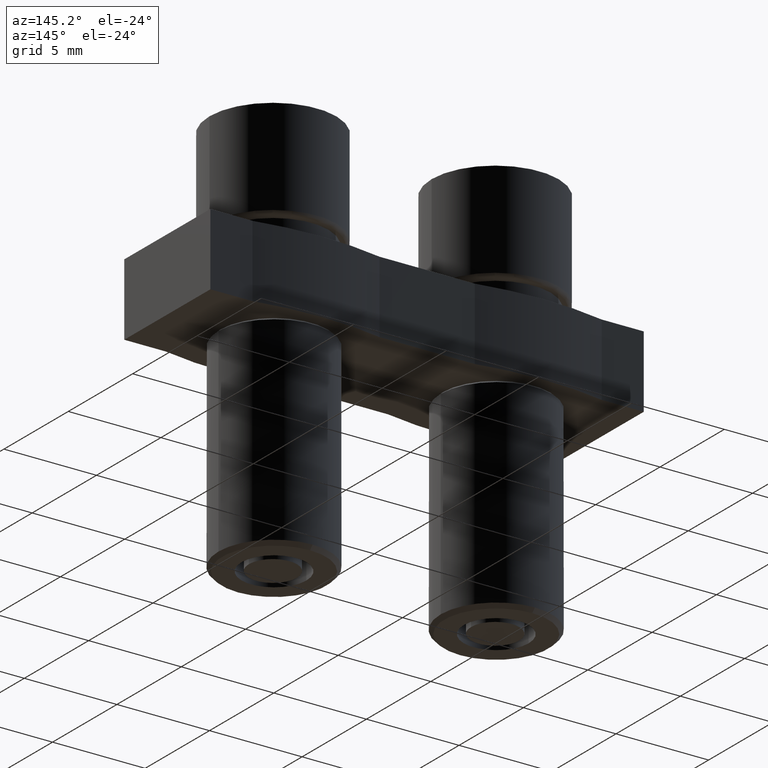
[diagram: clean part render]
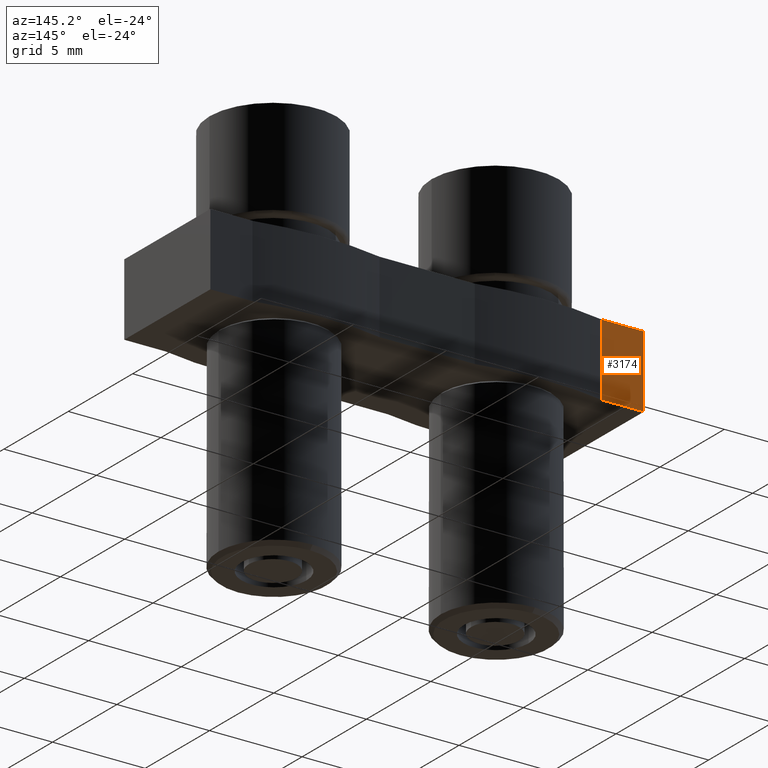
[diagram: same view with one face highlighted and labeled with its STEP entity id]
A machine part, auxiliary view. The second image highlights one B-rep face of the part: STEP entity #3174.
In plain terms, the highlighted planar face has unit normal (0, -1, 0).
Its self-contained STEP definition (entity closure, byte-faithful):
#480 = CARTESIAN_POINT ( 'NONE',  ( -77.85000000000005100, 3.350000000000084500, -4.800000000000001600 ) ) ;
#488 = DIRECTION ( 'NONE',  ( 1.000000000000000000, -0.0000000000000000000, 0.0000000000000000000 ) ) ;
#509 = LINE ( 'NONE', #480, #2581 ) ;
#1258 = PLANE ( 'NONE',  #2764 ) ;
#1271 = DIRECTION ( 'NONE',  ( 1.000000000000000000, 1.245679091791856200E-016, 0.0000000000000000000 ) ) ;
#1272 = FACE_OUTER_BOUND ( 'NONE', #1855, .T. ) ;
#1292 = DIRECTION ( 'NONE',  ( 1.245679091791856200E-016, -1.000000000000000000, 0.0000000000000000000 ) ) ;
#1296 = CARTESIAN_POINT ( 'NONE',  ( 16.15000000000000900, 3.350000000000087100, -0.9000000000000014700 ) ) ;
#1506 = CARTESIAN_POINT ( 'NONE',  ( -5.699999999999998400, 3.350000000000084500, -4.800000000000001600 ) ) ;
#1510 = CARTESIAN_POINT ( 'NONE',  ( 16.15000000000000900, 3.350000000000087100, -0.9000000000000014700 ) ) ;
#1517 = LINE ( 'NONE', #1510, #2602 ) ;
#1529 = LINE ( 'NONE', #1506, #2593 ) ;
#1531 = DIRECTION ( 'NONE',  ( 0.0000000000000000000, 0.0000000000000000000, -1.000000000000000000 ) ) ;
#1532 = DIRECTION ( 'NONE',  ( -1.000000000000000000, -1.245679091791856200E-016, -0.0000000000000000000 ) ) ;
#1696 = VERTEX_POINT ( 'NONE', #2459 ) ;
#1726 = VERTEX_POINT ( 'NONE', #2448 ) ;
#1733 = VERTEX_POINT ( 'NONE', #2454 ) ;
#1738 = VERTEX_POINT ( 'NONE', #2466 ) ;
#1855 = EDGE_LOOP ( 'NONE', ( #2141, #2226, #2200, #2198 ) ) ;
#2141 = ORIENTED_EDGE ( 'NONE', *, *, #2996, .F. ) ;
#2198 = ORIENTED_EDGE ( 'NONE', *, *, #3020, .F. ) ;
#2200 = ORIENTED_EDGE ( 'NONE', *, *, #2992, .F. ) ;
#2226 = ORIENTED_EDGE ( 'NONE', *, *, #3006, .F. ) ;
#2448 = CARTESIAN_POINT ( 'NONE',  ( -5.700000000000000200, 3.350000000000084500, -0.9000000000000014700 ) ) ;
#2454 = CARTESIAN_POINT ( 'NONE',  ( -5.699999999999996600, 3.350000000000084500, -4.800000000000001600 ) ) ;
#2459 = CARTESIAN_POINT ( 'NONE',  ( -3.426733138135080300, 3.350000000000084500, -0.9000000000000014700 ) ) ;
#2466 = CARTESIAN_POINT ( 'NONE',  ( -3.426733138135080300, 3.350000000000084500, -4.800000000000001600 ) ) ;
#2531 = LINE ( 'NONE', #2538, #2598 ) ;
#2533 = DIRECTION ( 'NONE',  ( 0.0000000000000000000, 0.0000000000000000000, 1.000000000000000000 ) ) ;
#2538 = CARTESIAN_POINT ( 'NONE',  ( -3.426733138135080300, 3.350000000000084500, -4.800000000000001600 ) ) ;
#2581 = VECTOR ( 'NONE', #488, 1000.000000000000000 ) ;
#2593 = VECTOR ( 'NONE', #1531, 1000.000000000000000 ) ;
#2598 = VECTOR ( 'NONE', #2533, 1000.000000000000000 ) ;
#2602 = VECTOR ( 'NONE', #1532, 1000.000000000000000 ) ;
#2764 = AXIS2_PLACEMENT_3D ( 'NONE', #1296, #1292, #1271 ) ;
#2992 = EDGE_CURVE ( 'NONE', #1738, #1696, #2531, .T. ) ;
#2996 = EDGE_CURVE ( 'NONE', #1726, #1733, #1529, .T. ) ;
#3006 = EDGE_CURVE ( 'NONE', #1696, #1726, #1517, .T. ) ;
#3020 = EDGE_CURVE ( 'NONE', #1733, #1738, #509, .T. ) ;
#3174 = ADVANCED_FACE ( 'NONE', ( #1272 ), #1258, .F. ) ;